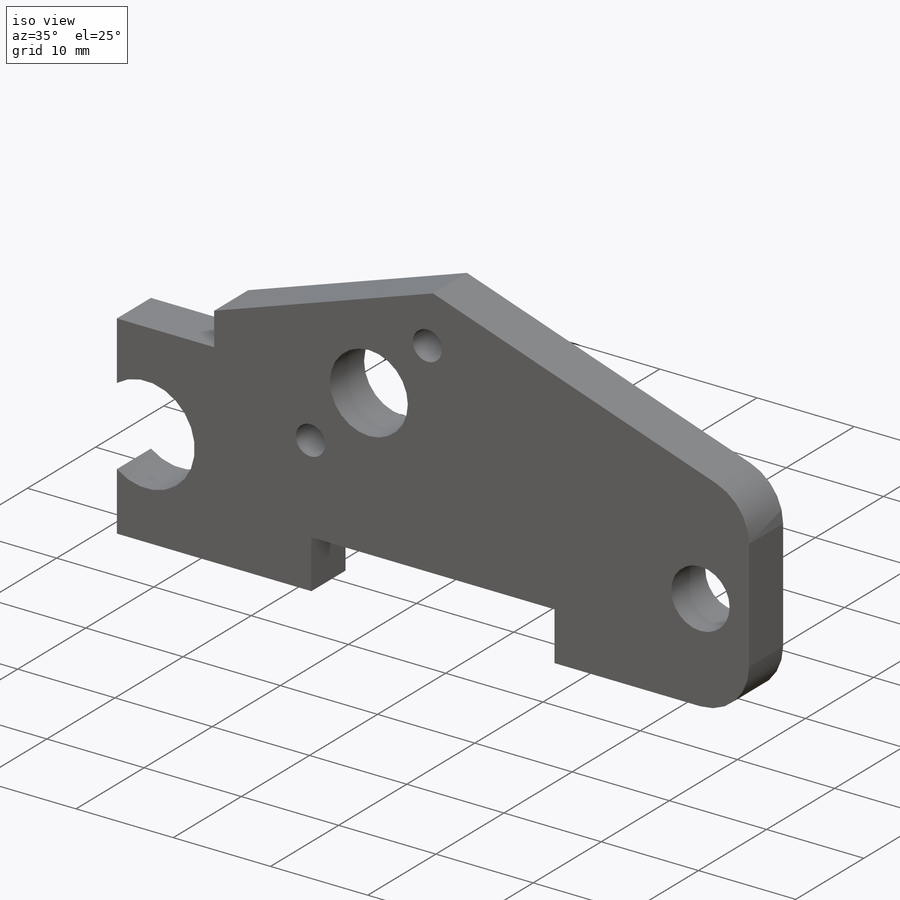
[diagram: iso view]
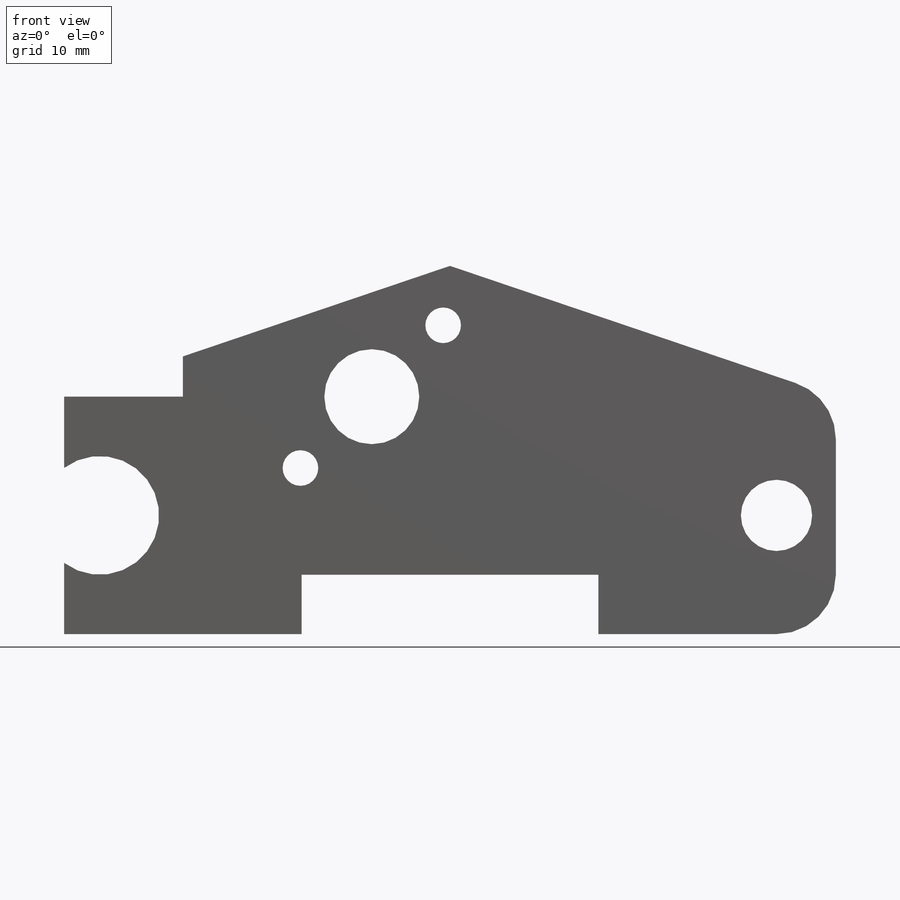
[diagram: front view]
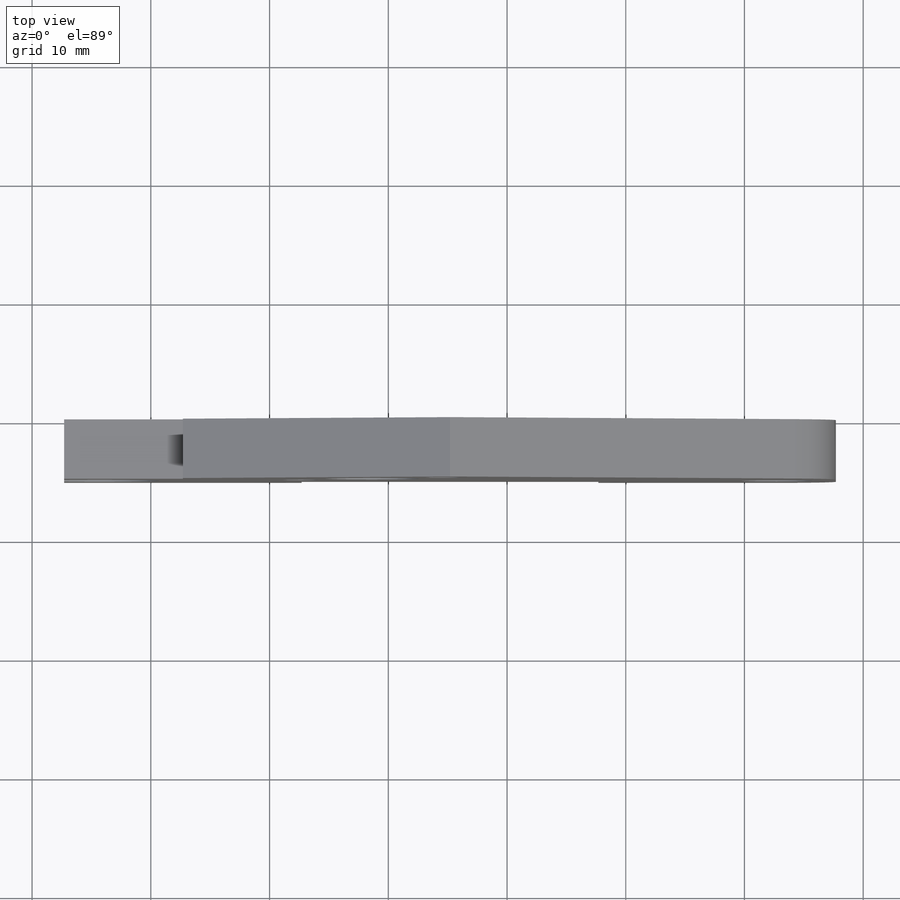
[diagram: top view]
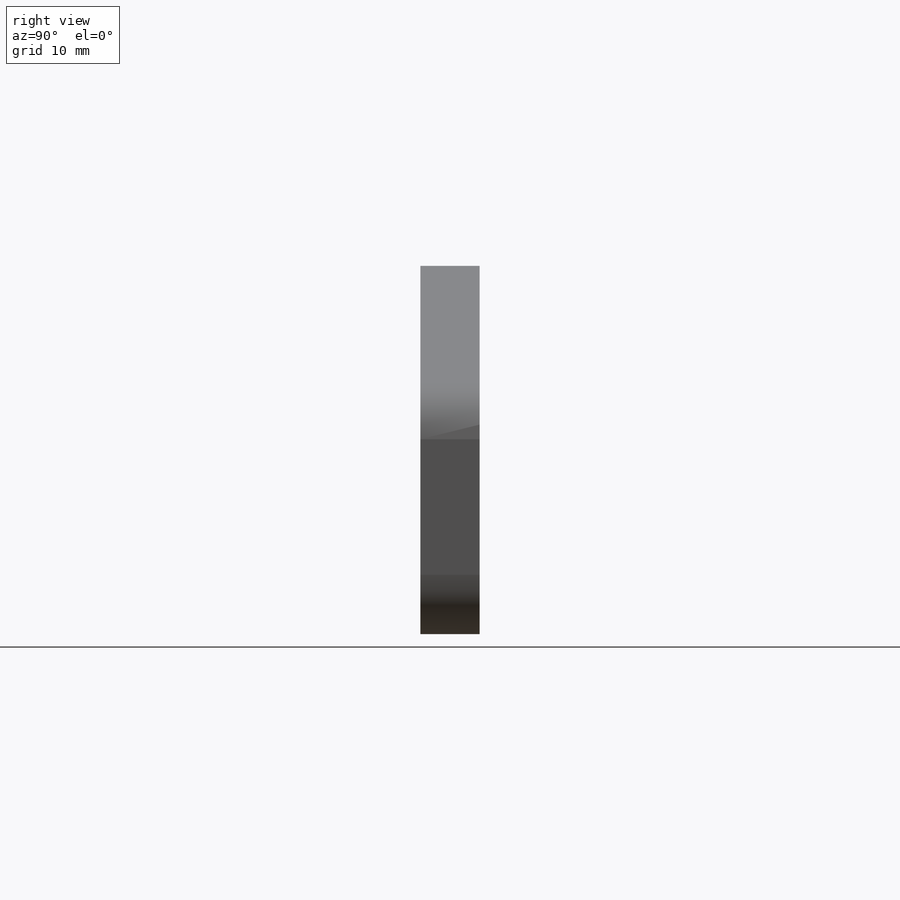
[diagram: right view]
SOLIDWORKS PART (.sldprt)
format: sldprt  version: not decoded by parser v0  size: 587,264 bytes
history: native  units: mm
features: sketch x24, hole x8, thread x3, fillet x3, cut_extrude x2, material x1, extrude x1 (+12 scaffold rows collapsed)
feature tree (54):
  scaffold x12  (default folders/planes/origin — collapsed)
  material  "Material <not specified>"
  sketch  "Sketch1"  dims[c1.D3=50.0mm c1.D1=78.0mm c1.D2=20.0mm c2.D1=65.0mm c2.D3=10.0mm c2.D4=4.0mm c2.D5=69.0mm c2.D6=20.0mm c2.D7=31.0mm c2.D8=5.0mm c2.D2=5.0mm c3.D5=5.0mm c3.D6=5.0mm c4.D5=5.0mm c4.D1=5.0mm c5.D5=10.0mm c5.D2=5.0mm c5.D6=5.0mm c5.D8=5.0mm c5.D9=~26.189122mm c6.D9=0.0deg c6.D10=5.0mm c6.D2=10.0mm c6.D6=10.0mm c6.D1=10.0mm]
  extrude  "Boss-Extrude1"  Depth=5mm
  sketch  "Sketch2"  dims[c1.D6=25.0mm c1.D8=50.0mm c1.D1=3.0mm c1.D2=20.0mm c1.D3=12.5mm c1.D4=8.5mm c1.D5=8.5mm c2.D3=8.5mm c2.D6=8.5mm c2.D7=5.0mm]
  hole  "Ø11.0 (11) Diameter Hole1"  Diameter=11mm Depth=25mm
  sketch  "3DSketch2"
  sketch  "Sketch4"  dims[hole-wizard template sketch: 47 standard entries collapsed; hole parameters kept: c15.Hole Depth=25.0mm c15.D3=~14.816244mm c15.Drill Angle=118.0deg]
  hole  "Ø6.0mm Dowel Hole1"  Diameter=6mm Depth=25mm
  sketch  "3DSketch6"
  sketch  "Sketch9"  dims[hole-wizard template sketch: 47 standard entries collapsed; hole parameters kept: c15.Hole Depth=25.0mm c15.D3=~14.816244mm c15.Drill Angle=118.0deg]
  sketch  "Sketch22"  dims[D1=20.0mm D2=5.0mm D3=25.0mm D4=2.0mm]
  cut_extrude  "Cut-Extrude1"  Depth=10mm
  sketch  "Sketch34"  dims[D1=25.0mm D2=8.0mm]
  hole  "Ø8.0mm Dowel Hole2"  Diameter=8mm Depth=20mm
  sketch  "Sketch36"
  sketch  "Sketch35"  dims[hole-wizard template sketch: 46 standard entries collapsed; hole parameters kept: c15.Hole Dia.=8.0mm c15.Hole Depth=20.0mm c15.D3=~14.816244mm c15.Drill Angle=118.0deg]
  sketch  "Sketch37"  dims[D1=8.5mm D2=8.5mm]
  hole  "CSK for M3 Hex Socket Countersunk Cap Screw1"  Diameter=3.4mm Depth=5mm
  sketch  "Sketch41"
  sketch  "Sketch40"  dims[hole-wizard template sketch: 56 standard entries collapsed; hole parameters kept: c17.Near C'Sink Dia.=6.72mm c17.D4=~3.666174mm c17.Near C'Sink Angle=90.0deg]
  sketch  "Sketch43"
  hole  "M3 Tapped Hole1"  Diameter=2.5mm Depth=7.5mm
  sketch  "Sketch45"
  sketch  "Sketch44"  dims[hole-wizard template sketch: 50 standard entries collapsed; hole parameters above]
  thread  "Hole Thread1"  Diameter=6mm  [1 undecoded]
  thread  "Hole Thread2"  Diameter=6mm  [1 undecoded]
  sketch  "Sketch46"  dims[D1=15.0mm]
  fillet  "Fillet2"  Radius=10mm
  fillet  "Fillet3"  Radius=10mm
  fillet  "Fillet4"  Radius=5mm
  sketch  "Sketch47"  dims[D1=5.0mm D2=2.5mm D3=2.5mm D4=5.0mm]
  cut_extrude  "Cut-Extrude2"  Depth=10mm
  hole  "M3 Tapped Hole2"  Diameter=2.5mm Depth=8mm
  sketch  "Sketch51"
  sketch  "Sketch50"  dims[hole-wizard template sketch: 50 standard entries collapsed; hole parameters above]
  thread  "Hole Thread3"  Diameter=6mm  [1 undecoded]
  hole  "Ø6.0 (6) Diameter Hole1"  Diameter=6mm Depth=25mm
  sketch  "Sketch53"  dims[D1=5.0mm D2=5.0mm]
  sketch  "Sketch52"  dims[hole-wizard template sketch: 47 standard entries collapsed; hole parameters kept: c15.Hole Depth=25.0mm c15.D3=~14.816244mm c15.Drill Angle=118.0deg]
  hole  "Ø6.0 (6) Diameter Hole2"  Diameter=6mm Depth=25mm
  sketch  "Sketch55"  dims[c1.D1=5.0mm c1.D2=~7.006187mm c2.D2=90.0deg c3.D2=5.0mm]
  sketch  "Sketch54"  dims[hole-wizard template sketch: 47 standard entries collapsed; hole parameters kept: c15.Hole Depth=25.0mm c15.D3=~14.816244mm c15.Drill Angle=118.0deg]
decode coverage: 34 of 41 modeling features carry decoded parameters
note: ~ marks probable driven/reference dimensions
note: 3 parameter values undecoded
summary: Diameter pulled from absorbed wizard sketch
note: suppression state not decoded; provenance and decode notes live in map.json
